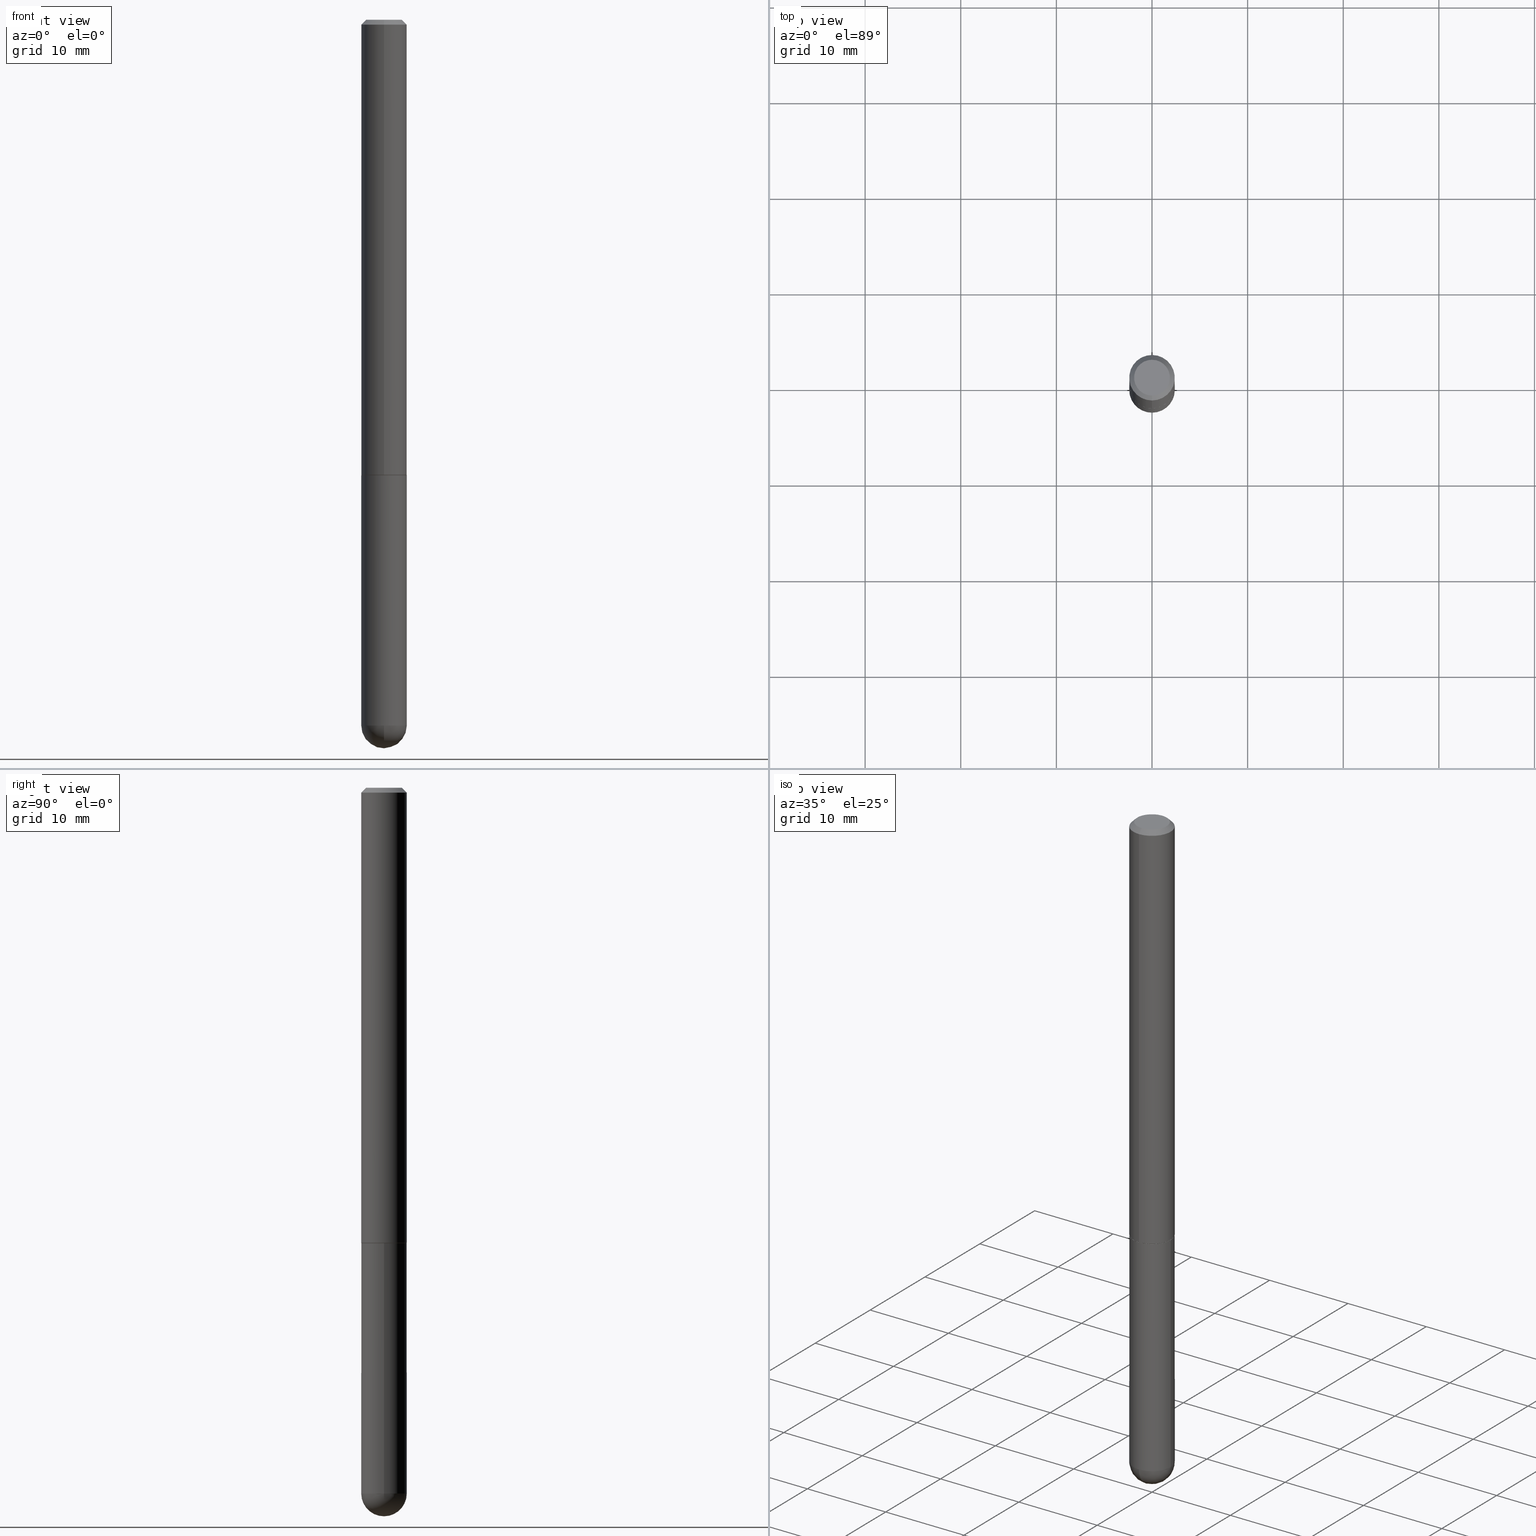
[diagram: canonical four-view strip — front | top / right | iso, engineering-drawing reading convention]
A machine part, canonical four-view strip (front | top / right | iso — engineering-drawing reading convention). The complete STEP part file that produces these views, byte-faithful:
ISO-10303-21;
HEADER;
FILE_DESCRIPTION (( 'STEP AP203' ),
    '1' );
FILE_NAME ('33322.STEP',
    '2024-02-21T18:03:22',
    ( '' ),
    ( '' ),
    'SwSTEP 2.0',
    'SolidWorks 2023',
    '' );
FILE_SCHEMA (( 'CONFIG_CONTROL_DESIGN' ));
ENDSEC;

DATA;
#1 = CALENDAR_DATE ( 2024, 21, 2 ) ;
#2 = DIRECTION ( 'NONE',  ( 6.982962677686265133E-15, 1.000000000000000000, -5.827942386483743389E-15 ) ) ;
#3 = ADVANCED_FACE ( 'NONE', ( #146 ), #356, .F. ) ;
#4 = CALENDAR_DATE ( 2024, 21, 2 ) ;
#5 = ORIENTED_EDGE ( 'NONE', *, *, #143, .T. ) ;
#6 = VECTOR ( 'NONE', #40, 39.37007874015748143 ) ;
#7 = AXIS2_PLACEMENT_3D ( 'NONE', #145, #344, #118 ) ;
#8 = CARTESIAN_POINT ( 'NONE',  ( 4.887778694849685267E-31, -6.987486427370243399E-17, -0.02000000000000007327 ) ) ;
#9 = CARTESIAN_POINT ( 'NONE',  ( 6.661338147750947131E-16, 0.09375000000000012490, -3.275384262829794452E-16 ) ) ;
#10 = DIRECTION ( 'NONE',  ( -2.443889347424833507E-29, 3.493743213685109349E-15, 1.000000000000000000 ) ) ;
#11 = CC_DESIGN_PERSON_AND_ORGANIZATION_ASSIGNMENT ( #30, #61, ( #98 ) ) ;
#12 = VERTEX_POINT ( 'NONE', #403 ) ;
#13 = EDGE_CURVE ( 'NONE', #48, #239, #96, .T. ) ;
#14 = FACE_OUTER_BOUND ( 'NONE', #51, .T. ) ;
#15 = ORIENTED_EDGE ( 'NONE', *, *, #407, .F. ) ;
#16 = CARTESIAN_POINT ( 'NONE',  ( 4.579848637074137935E-29, -6.547274782445895103E-15, -1.874000000000000110 ) ) ;
#17 = EDGE_LOOP ( 'NONE', ( #5, #187, #237, #21 ) ) ;
#18 = EDGE_CURVE ( 'NONE', #12, #66, #45, .T. ) ;
#19 = MANIFOLD_SOLID_BREP ( 'Body-Move/Copy2[2]', #398 ) ;
#20 = DIRECTION ( 'NONE',  ( -4.937700262165053702E-15, -0.7071067811866175168, 0.7071067811864775177 ) ) ;
#21 = ORIENTED_EDGE ( 'NONE', *, *, #326, .F. ) ;
#22 = APPLICATION_CONTEXT ( 'configuration controlled 3d designs of mechanical parts and assemblies' ) ;
#23 = CIRCLE ( 'NONE', #210, 0.07374999999999973244 ) ;
#24 = ORIENTED_EDGE ( 'NONE', *, *, #261, .F. ) ;
#25 = DIRECTION ( 'NONE',  ( -6.982962677686265922E-15, -1.000000000000000000, 2.945388672414300286E-15 ) ) ;
#26 = EDGE_LOOP ( 'NONE', ( #307, #191, #289, #245 ) ) ;
#27 = DIRECTION ( 'NONE',  ( -6.982962677686266711E-15, -1.000000000000000000, 3.493743213685109349E-15 ) ) ;
#28 = CARTESIAN_POINT ( 'NONE',  ( 4.579848637074137935E-29, -6.547274782445895103E-15, -1.874000000000000110 ) ) ;
#29 = AXIS2_PLACEMENT_3D ( 'NONE', #8, #262, #213 ) ;
#30 = PERSON_AND_ORGANIZATION ( #292, #164 ) ;
#31 = PERSON_AND_ORGANIZATION ( #292, #164 ) ;
#32 = DIRECTION ( 'NONE',  ( 1.000000000000000000, -6.982962677686263555E-15, 0.000000000000000000 ) ) ;
#33 = ORIENTED_EDGE ( 'NONE', *, *, #106, .T. ) ;
#34 = CALENDAR_DATE ( 2024, 21, 2 ) ;
#35 = LINE ( 'NONE', #258, #79 ) ;
#36 = COORDINATED_UNIVERSAL_TIME_OFFSET ( 5, 0, .BEHIND. ) ;
#37 = CARTESIAN_POINT ( 'NONE',  ( 0.09375000000000005551, -9.001475326704983750E-15, -2.906250000000000000 ) ) ;
#38 = CARTESIAN_POINT ( 'NONE',  ( 6.546527510330878985E-16, 0.09374999999999991673, -0.02000000000000040287 ) ) ;
#39 = AXIS2_PLACEMENT_3D ( 'NONE', #43, #329, #271 ) ;
#40 = DIRECTION ( 'NONE',  ( -2.443889347424833227E-29, 3.493743213685109349E-15, 1.000000000000000000 ) ) ;
#41 = ADVANCED_FACE ( 'NONE', ( #412 ), #69, .T. ) ;
#42 = DIRECTION ( 'NONE',  ( -2.443889347424833507E-29, 3.493743213685109349E-15, 1.000000000000000000 ) ) ;
#43 = CARTESIAN_POINT ( 'NONE',  ( 4.887778694849685267E-31, -6.987486427370243399E-17, -0.02000000000000007327 ) ) ;
#44 = EDGE_LOOP ( 'NONE', ( #209, #345, #399, #15, #231 ) ) ;
#45 = CIRCLE ( 'NONE', #392, 0.09374999999999998612 ) ;
#46 = CC_DESIGN_APPROVAL ( #297, ( #264 ) ) ;
#47 = CARTESIAN_POINT ( 'NONE',  ( -0.09375000000000005551, -7.680688760896801533E-15, -2.906250000000000000 ) ) ;
#48 = VERTEX_POINT ( 'NONE', #247 ) ;
#49 =( NAMED_UNIT ( * ) PLANE_ANGLE_UNIT ( ) SI_UNIT ( $, .RADIAN. ) );
#50 = DIRECTION ( 'NONE',  ( -2.445468806185136597E-29, 3.491481338843145583E-15, 1.000000000000000000 ) ) ;
#51 = EDGE_LOOP ( 'NONE', ( #401, #310, #126, #230 ) ) ;
#52 = VECTOR ( 'NONE', #286, 39.37007874015748854 ) ;
#53 = LINE ( 'NONE', #111, #293 ) ;
#54 = VERTEX_POINT ( 'NONE', #37 ) ;
#55 = CARTESIAN_POINT ( 'NONE',  ( 0.000000000000000000, 0.000000000000000000, 0.000000000000000000 ) ) ;
#56 = EDGE_CURVE ( 'NONE', #283, #243, #35, .T. ) ;
#57 = DIRECTION ( 'NONE',  ( 1.000000000000000000, -6.982962677686258033E-15, 0.000000000000000000 ) ) ;
#58 = DATE_AND_TIME ( #1, #183 ) ;
#59 = AXIS2_PLACEMENT_3D ( 'NONE', #279, #342, #57 ) ;
#60 = PRODUCT_DEFINITION_FORMATION_WITH_SPECIFIED_SOURCE ( 'ANY', '', #287, .NOT_KNOWN. ) ;
#61 = PERSON_AND_ORGANIZATION_ROLE ( 'classification_officer' ) ;
#62 = ORIENTED_EDGE ( 'NONE', *, *, #357, .F. ) ;
#63 = PERSON_AND_ORGANIZATION ( #292, #164 ) ;
#64 = EDGE_LOOP ( 'NONE', ( #170, #194, #62, #205 ) ) ;
#65 = APPROVAL_DATE_TIME ( #411, #297 ) ;
#66 = VERTEX_POINT ( 'NONE', #388 ) ;
#67 = AXIS2_PLACEMENT_3D ( 'NONE', #278, #184, #91 ) ;
#68 = PERSON_AND_ORGANIZATION ( #292, #164 ) ;
#69 = SPHERICAL_SURFACE ( 'NONE', #168, 0.09375000000000029143 ) ;
#70 = ADVANCED_BREP_SHAPE_REPRESENTATION ( '33322', ( #296, #19, #235 ), #362 ) ;
#71 = EDGE_CURVE ( 'NONE', #144, #66, #318, .T. ) ;
#72 = DIRECTION ( 'NONE',  ( 1.000000000000000000, -6.982962677686258033E-15, 0.000000000000000000 ) ) ;
#73 = DIRECTION ( 'NONE',  ( -2.445468806185136597E-29, 3.491481338843145583E-15, 1.000000000000000000 ) ) ;
#74 = CLOSED_SHELL ( 'NONE', ( #354, #41, #100, #376, #380 ) ) ;
#75 = DIRECTION ( 'NONE',  ( 2.443889347424833227E-29, -3.493743213685109349E-15, -1.000000000000000000 ) ) ;
#76 = DIRECTION ( 'NONE',  ( 1.000000000000000000, -6.982962677686258033E-15, 0.000000000000000000 ) ) ;
#77 = VERTEX_POINT ( 'NONE', #254 ) ;
#78 = ORIENTED_EDGE ( 'NONE', *, *, #326, .T. ) ;
#79 = VECTOR ( 'NONE', #160, 39.37007874015748143 ) ;
#80 = DIRECTION ( 'NONE',  ( -2.445468806185136597E-29, 3.491481338843145583E-15, 1.000000000000000000 ) ) ;
#81 = ORIENTED_EDGE ( 'NONE', *, *, #199, .F. ) ;
#82 = DIRECTION ( 'NONE',  ( 1.000000000000000000, -6.982962677686265922E-15, 4.876176775795935793E-29 ) ) ;
#83 = DIRECTION ( 'NONE',  ( -2.443889347424833507E-29, 3.493743213685109349E-15, 1.000000000000000000 ) ) ;
#84 = AXIS2_PLACEMENT_3D ( 'NONE', #298, #166, #162 ) ;
#85 = CARTESIAN_POINT ( 'NONE',  ( 6.590283874175385714E-16, 0.09274999999999343492, -1.875000000000000444 ) ) ;
#86 = ORIENTED_EDGE ( 'NONE', *, *, #18, .T. ) ;
#87 = CYLINDRICAL_SURFACE ( 'NONE', #353, 0.09375000000000002776 ) ;
#88 = PERSON_AND_ORGANIZATION_ROLE ( 'design_supplier' ) ;
#89 = EDGE_CURVE ( 'NONE', #66, #12, #130, .T. ) ;
#90 = SHAPE_DEFINITION_REPRESENTATION ( #188, #70 ) ;
#91 = DIRECTION ( 'NONE',  ( -6.982962677686265922E-15, -1.000000000000000000, 3.493743213685109349E-15 ) ) ;
#92 = VERTEX_POINT ( 'NONE', #99 ) ;
#93 = EDGE_CURVE ( 'NONE', #48, #283, #23, .T. ) ;
#94 = ADVANCED_FACE ( 'NONE', ( #385 ), #153, .F. ) ;
#95 = DATE_TIME_ROLE ( 'classification_date' ) ;
#96 = LINE ( 'NONE', #125, #52 ) ;
#97 = AXIS2_PLACEMENT_3D ( 'NONE', #136, #132, #360 ) ;
#98 = SECURITY_CLASSIFICATION ( '', '', #127 ) ;
#99 = CARTESIAN_POINT ( 'NONE',  ( 6.625811010963399630E-16, 0.09274999999999343492, -1.875000000000000444 ) ) ;
#100 = ADVANCED_FACE ( 'NONE', ( #268 ), #200, .T. ) ;
#101 = DIRECTION ( 'NONE',  ( 6.982962677686266711E-15, 1.000000000000000000, -3.505871591869138487E-15 ) ) ;
#102 = CC_DESIGN_PERSON_AND_ORGANIZATION_ASSIGNMENT ( #63, #408, ( #60 ) ) ;
#103 = FACE_OUTER_BOUND ( 'NONE', #371, .T. ) ;
#104 = CIRCLE ( 'NONE', #7, 0.09375000000000005551 ) ;
#105 = CARTESIAN_POINT ( 'NONE',  ( 7.107143717975553234E-29, -1.014711764101289221E-14, -2.906250000000000000 ) ) ;
#106 = EDGE_CURVE ( 'NONE', #112, #54, #301, .T. ) ;
#107 = VERTEX_POINT ( 'NONE', #232 ) ;
#108 = LINE ( 'NONE', #9, #352 ) ;
#109 = ORIENTED_EDGE ( 'NONE', *, *, #56, .F. ) ;
#110 = DIRECTION ( 'NONE',  ( -6.982962677686265922E-15, -1.000000000000000000, 2.945388672414300286E-15 ) ) ;
#111 = CARTESIAN_POINT ( 'NONE',  ( -6.476697883553552429E-16, -0.09275000000000654943, -1.874999999999999778 ) ) ;
#112 = VERTEX_POINT ( 'NONE', #236 ) ;
#113 =( CONVERSION_BASED_UNIT ( 'INCH', #115 ) LENGTH_UNIT ( ) NAMED_UNIT ( #249 ) );
#114 = CC_DESIGN_DATE_AND_TIME_ASSIGNMENT ( #387, #95, ( #98 ) ) ;
#115 = LENGTH_MEASURE_WITH_UNIT ( LENGTH_MEASURE( 0.02539999999999999897 ), #207 );
#116 = DIRECTION ( 'NONE',  ( 1.000000000000000000, -6.982962677686263555E-15, 0.000000000000000000 ) ) ;
#117 = AXIS2_PLACEMENT_3D ( 'NONE', #105, #73, #72 ) ;
#118 = DIRECTION ( 'NONE',  ( 1.000000000000000000, -6.982962677686258033E-15, 0.000000000000000000 ) ) ;
#119 = CC_DESIGN_PERSON_AND_ORGANIZATION_ASSIGNMENT ( #68, #255, ( #287 ) ) ;
#120 = CARTESIAN_POINT ( 'NONE',  ( 0.000000000000000000, 0.000000000000000000, 0.000000000000000000 ) ) ;
#121 = DATE_AND_TIME ( #282, #248 ) ;
#122 = APPROVAL_ROLE ( '' ) ;
#123 = VECTOR ( 'NONE', #389, 39.37007874015748143 ) ;
#124 = CIRCLE ( 'NONE', #169, 0.09375000000000029143 ) ;
#125 = CARTESIAN_POINT ( 'NONE',  ( -6.431716872910804923E-16, -0.09375000000000005551, -0.01999999999999974368 ) ) ;
#126 = ORIENTED_EDGE ( 'NONE', *, *, #56, .T. ) ;
#127 = SECURITY_CLASSIFICATION_LEVEL ( 'unclassified' ) ;
#128 = CARTESIAN_POINT ( 'NONE',  ( 4.585254011597131119E-29, -6.546527510330898707E-15, -1.875000000000000000 ) ) ;
#129 = ORIENTED_EDGE ( 'NONE', *, *, #143, .F. ) ;
#130 = CIRCLE ( 'NONE', #140, 0.09374999999999998612 ) ;
#131 = CARTESIAN_POINT ( 'NONE',  ( -6.546527510330883916E-16, -0.09375000000000012490, 3.275384262829794452E-16 ) ) ;
#132 = DIRECTION ( 'NONE',  ( -1.000000000000000000, 6.982962677686265133E-15, -4.883557194083112901E-29 ) ) ;
#133 = DIRECTION ( 'NONE',  ( -6.982962677686266711E-15, -1.000000000000000000, 3.493743213685109349E-15 ) ) ;
#134 = EDGE_LOOP ( 'NONE', ( #129, #138 ) ) ;
#135 = VECTOR ( 'NONE', #281, 39.37007874015748143 ) ;
#136 = CARTESIAN_POINT ( 'NONE',  ( 6.776023940061668108E-29, -1.062130000915294250E-14, -2.906250000000000000 ) ) ;
#137 = DIRECTION ( 'NONE',  ( -6.982962677686265133E-15, -1.000000000000000000, 2.913971193241872483E-15 ) ) ;
#138 = ORIENTED_EDGE ( 'NONE', *, *, #202, .F. ) ;
#139 = ORIENTED_EDGE ( 'NONE', *, *, #212, .T. ) ;
#140 = AXIS2_PLACEMENT_3D ( 'NONE', #215, #351, #32 ) ;
#141 = CC_DESIGN_APPROVAL ( #270, ( #98 ) ) ;
#142 = CARTESIAN_POINT ( 'NONE',  ( 6.776023940061668108E-29, -1.062130000915294250E-14, -2.906250000000000000 ) ) ;
#143 = EDGE_CURVE ( 'NONE', #107, #92, #197, .T. ) ;
#144 = VERTEX_POINT ( 'NONE', #47 ) ;
#145 = CARTESIAN_POINT ( 'NONE',  ( 7.107143717975553234E-29, -1.014711764101289221E-14, -2.906250000000000000 ) ) ;
#146 = FACE_OUTER_BOUND ( 'NONE', #134, .T. ) ;
#147 = EDGE_CURVE ( 'NONE', #179, #243, #108, .T. ) ;
#148 = DIRECTION ( 'NONE',  ( -2.443889347424833507E-29, 3.493743213685109349E-15, 1.000000000000000000 ) ) ;
#149 = AXIS2_PLACEMENT_3D ( 'NONE', #299, #397, #110 ) ;
#150 = CARTESIAN_POINT ( 'NONE',  ( 0.09375000000000002776, -6.546527510330876027E-16, 4.571415727308691207E-30 ) ) ;
#151 = APPROVAL_STATUS ( 'not_yet_approved' ) ;
#152 = CALENDAR_DATE ( 2024, 21, 2 ) ;
#153 = PLANE ( 'NONE',  #252 ) ;
#154 = COORDINATED_UNIVERSAL_TIME_OFFSET ( 5, 0, .BEHIND. ) ;
#155 = ORIENTED_EDGE ( 'NONE', *, *, #175, .F. ) ;
#156 = APPLICATION_CONTEXT ( 'configuration controlled 3d designs of mechanical parts and assemblies' ) ;
#157 = PERSON_AND_ORGANIZATION ( #292, #164 ) ;
#158 = DIRECTION ( 'NONE',  ( -1.000000000000000000, 6.982962677686265133E-15, -4.883557194083112901E-29 ) ) ;
#159 = COORDINATED_UNIVERSAL_TIME_OFFSET ( 5, 0, .BEHIND. ) ;
#160 = DIRECTION ( 'NONE',  ( 4.937700262164540154E-15, 0.7071067811865440200, -0.7071067811865511255 ) ) ;
#161 = ADVANCED_FACE ( 'NONE', ( #196 ), #366, .T. ) ;
#162 = DIRECTION ( 'NONE',  ( -6.982962677686265922E-15, -1.000000000000000000, 2.945388672414300286E-15 ) ) ;
#163 = AXIS2_PLACEMENT_3D ( 'NONE', #390, #42, #265 ) ;
#164 = ORGANIZATION ( 'UNSPECIFIED', 'UNSPECIFIED', '' ) ;
#165 = DIRECTION ( 'NONE',  ( -2.443889347424833507E-29, 3.493743213685109349E-15, 1.000000000000000000 ) ) ;
#166 = DIRECTION ( 'NONE',  ( -2.443889347424833507E-29, 3.493743213685109349E-15, 1.000000000000000000 ) ) ;
#167 = FACE_OUTER_BOUND ( 'NONE', #336, .T. ) ;
#168 = AXIS2_PLACEMENT_3D ( 'NONE', #324, #158, #2 ) ;
#169 = AXIS2_PLACEMENT_3D ( 'NONE', #142, #346, #217 ) ;
#170 = ORIENTED_EDGE ( 'NONE', *, *, #186, .F. ) ;
#171 = DIRECTION ( 'NONE',  ( -6.982962677686265922E-15, -1.000000000000000000, 2.945388672414300286E-15 ) ) ;
#172 = ORIENTED_EDGE ( 'NONE', *, *, #407, .T. ) ;
#173 = FACE_OUTER_BOUND ( 'NONE', #17, .T. ) ;
#174 = VERTEX_POINT ( 'NONE', #394 ) ;
#175 = EDGE_CURVE ( 'NONE', #174, #239, #238, .T. ) ;
#176 = CIRCLE ( 'NONE', #410, 0.09375000000000026368 ) ;
#177 = APPROVAL_PERSON_ORGANIZATION ( #157, #229, #222 ) ;
#178 = DIRECTION ( 'NONE',  ( -1.000000000000000000, 6.982962677686265922E-15, -4.876176775795935793E-29 ) ) ;
#179 = VERTEX_POINT ( 'NONE', #233 ) ;
#180 = CARTESIAN_POINT ( 'NONE',  ( 4.582292526421562791E-29, -6.550768525659580818E-15, -1.875000000000000000 ) ) ;
#181 = FACE_OUTER_BOUND ( 'NONE', #396, .T. ) ;
#182 = CIRCLE ( 'NONE', #59, 0.09375000000000005551 ) ;
#183 = LOCAL_TIME ( 13, 3, 22.00000000000000000, #154 ) ;
#184 = DIRECTION ( 'NONE',  ( -2.443889347424833227E-29, 3.493743213685109349E-15, 1.000000000000000000 ) ) ;
#185 = EDGE_CURVE ( 'NONE', #283, #48, #405, .T. ) ;
#186 = EDGE_CURVE ( 'NONE', #276, #112, #308, .T. ) ;
#187 = ORIENTED_EDGE ( 'NONE', *, *, #261, .T. ) ;
#188 = PRODUCT_DEFINITION_SHAPE ( 'NONE', 'NONE',  #264 ) ;
#189 = COORDINATED_UNIVERSAL_TIME_OFFSET ( 5, 0, .BEHIND. ) ;
#190 = AXIS2_PLACEMENT_3D ( 'NONE', #244, #50, #404 ) ;
#191 = ORIENTED_EDGE ( 'NONE', *, *, #199, .T. ) ;
#192 = EDGE_CURVE ( 'NONE', #77, #144, #368, .T. ) ;
#193 = APPROVAL_STATUS ( 'not_yet_approved' ) ;
#194 = ORIENTED_EDGE ( 'NONE', *, *, #332, .T. ) ;
#195 = DIRECTION ( 'NONE',  ( 2.443889347424833507E-29, -3.493743213685109349E-15, -1.000000000000000000 ) ) ;
#196 = FACE_OUTER_BOUND ( 'NONE', #26, .T. ) ;
#197 = CIRCLE ( 'NONE', #219, 0.09274999999999998523 ) ;
#198 = CARTESIAN_POINT ( 'NONE',  ( 4.582292526421562791E-29, -6.550768525659580818E-15, -1.875000000000000000 ) ) ;
#199 = EDGE_CURVE ( 'NONE', #179, #174, #176, .T. ) ;
#200 = SPHERICAL_SURFACE ( 'NONE', #97, 0.09375000000000029143 ) ;
#201 = EDGE_LOOP ( 'NONE', ( #374, #256, #367, #333 ) ) ;
#202 = EDGE_CURVE ( 'NONE', #92, #107, #348, .T. ) ;
#203 = CARTESIAN_POINT ( 'NONE',  ( 6.776023940061668108E-29, -1.062130000915294250E-14, -2.906250000000000000 ) ) ;
#204 = CONICAL_SURFACE ( 'NONE', #321, 0.09374999999999998612, 0.7853981633974467247 ) ;
#205 = ORIENTED_EDGE ( 'NONE', *, *, #106, .F. ) ;
#206 = ORIENTED_EDGE ( 'NONE', *, *, #212, .F. ) ;
#207 =( LENGTH_UNIT ( ) NAMED_UNIT ( * ) SI_UNIT ( $, .METRE. ) );
#208 = CYLINDRICAL_SURFACE ( 'NONE', #241, 0.09375000000000012490 ) ;
#209 = ORIENTED_EDGE ( 'NONE', *, *, #192, .T. ) ;
#210 = AXIS2_PLACEMENT_3D ( 'NONE', #358, #313, #377 ) ;
#211 = CONICAL_SURFACE ( 'NONE', #303, 0.09274999999999998523, 0.7853981633975507526 ) ;
#212 = EDGE_CURVE ( 'NONE', #239, #243, #226, .T. ) ;
#213 = DIRECTION ( 'NONE',  ( -6.982962677686266711E-15, -1.000000000000000000, 3.505871591869138487E-15 ) ) ;
#214 = ADVANCED_FACE ( 'NONE', ( #103 ), #284, .T. ) ;
#215 = CARTESIAN_POINT ( 'NONE',  ( 4.585254011597131119E-29, -6.546527510330898707E-15, -1.875000000000000000 ) ) ;
#216 = ADVANCED_FACE ( 'NONE', ( #167 ), #266, .T. ) ;
#217 = DIRECTION ( 'NONE',  ( 6.982962677686265922E-15, 1.000000000000000000, 0.000000000000000000 ) ) ;
#218 = APPLICATION_PROTOCOL_DEFINITION ( 'international standard', 'config_control_design', 1994, #156 ) ;
#219 = AXIS2_PLACEMENT_3D ( 'NONE', #198, #395, #171 ) ;
#220 = MECHANICAL_CONTEXT ( 'NONE', #22, 'mechanical' ) ;
#221 = UNCERTAINTY_MEASURE_WITH_UNIT (LENGTH_MEASURE( 1.000000000000000082E-05 ), #113, 'distance_accuracy_value', 'NONE');
#222 = APPROVAL_ROLE ( '' ) ;
#223 = DIRECTION ( 'NONE',  ( -2.445468806185136597E-29, 3.491481338843145583E-15, 1.000000000000000000 ) ) ;
#224 = ORIENTED_EDGE ( 'NONE', *, *, #13, .T. ) ;
#225 = ADVANCED_FACE ( 'NONE', ( #14 ), #204, .T. ) ;
#226 = CIRCLE ( 'NONE', #234, 0.09374999999999998612 ) ;
#227 = COORDINATED_UNIVERSAL_TIME_OFFSET ( 5, 0, .BEHIND. ) ;
#228 = APPROVAL_PERSON_ORGANIZATION ( #347, #297, #349 ) ;
#229 = APPROVAL ( #193, 'UNSPECIFIED' ) ;
#230 = ORIENTED_EDGE ( 'NONE', *, *, #257, .T. ) ;
#231 = ORIENTED_EDGE ( 'NONE', *, *, #357, .T. ) ;
#232 = CARTESIAN_POINT ( 'NONE',  ( -6.476697883553552429E-16, -0.09275000000000654943, -1.874999999999999778 ) ) ;
#233 = CARTESIAN_POINT ( 'NONE',  ( 6.661338147751183789E-16, 0.09374999999999372724, -1.874000000000000332 ) ) ;
#234 = AXIS2_PLACEMENT_3D ( 'NONE', #295, #330, #391 ) ;
#235 = AXIS2_PLACEMENT_3D ( 'NONE', #290, #355, #384 ) ;
#236 = CARTESIAN_POINT ( 'NONE',  ( -6.661338147750256878E-16, -0.09375000000001056100, -2.906249999999999556 ) ) ;
#237 = ORIENTED_EDGE ( 'NONE', *, *, #393, .F. ) ;
#238 = LINE ( 'NONE', #131, #6 ) ;
#239 = VERTEX_POINT ( 'NONE', #325 ) ;
#240 = CARTESIAN_POINT ( 'NONE',  ( 4.887778694849685267E-31, -6.987486427370243399E-17, -0.02000000000000007327 ) ) ;
#241 = AXIS2_PLACEMENT_3D ( 'NONE', #55, #83, #27 ) ;
#242 = CC_DESIGN_APPROVAL ( #229, ( #60 ) ) ;
#243 = VERTEX_POINT ( 'NONE', #38 ) ;
#244 = CARTESIAN_POINT ( 'NONE',  ( 0.000000000000000000, 0.000000000000000000, 0.000000000000000000 ) ) ;
#245 = ORIENTED_EDGE ( 'NONE', *, *, #257, .F. ) ;
#246 = ORIENTED_EDGE ( 'NONE', *, *, #89, .F. ) ;
#247 = CARTESIAN_POINT ( 'NONE',  ( -5.745667073133644707E-16, -0.07374999999999973244, 5.139411246848953487E-16 ) ) ;
#248 = LOCAL_TIME ( 13, 3, 22.00000000000000000, #227 ) ;
#249 = DIMENSIONAL_EXPONENTS ( 1.000000000000000000, 0.000000000000000000, 0.000000000000000000, 0.000000000000000000, 0.000000000000000000, 0.000000000000000000, 0.000000000000000000 ) ;
#250 = LINE ( 'NONE', #85, #259 ) ;
#251 = CC_DESIGN_DATE_AND_TIME_ASSIGNMENT ( #58, #316, ( #264 ) ) ;
#252 = AXIS2_PLACEMENT_3D ( 'NONE', #409, #75, #363 ) ;
#253 = PERSON_AND_ORGANIZATION_ROLE ( 'creator' ) ;
#254 = CARTESIAN_POINT ( 'NONE',  ( 6.546527510331581072E-16, 0.09374999999998979983, -2.906250000000000888 ) ) ;
#255 = PERSON_AND_ORGANIZATION_ROLE ( 'design_owner' ) ;
#256 = ORIENTED_EDGE ( 'NONE', *, *, #186, .T. ) ;
#257 = EDGE_CURVE ( 'NONE', #243, #239, #375, .T. ) ;
#258 = CARTESIAN_POINT ( 'NONE',  ( 6.546527510330878985E-16, 0.09374999999999991673, -0.02000000000000040287 ) ) ;
#259 = VECTOR ( 'NONE', #312, 39.37007874015748143 ) ;
#260 = CARTESIAN_POINT ( 'NONE',  ( -0.09375000000000002776, 6.661338147750941215E-16, -4.611501647113975397E-30 ) ) ;
#261 = EDGE_CURVE ( 'NONE', #92, #179, #250, .T. ) ;
#262 = DIRECTION ( 'NONE',  ( -2.443889347424833507E-29, 3.493743213685109349E-15, 1.000000000000000000 ) ) ;
#263 = CARTESIAN_POINT ( 'NONE',  ( 7.107143717975553234E-29, -1.014711764101289221E-14, -2.906250000000000000 ) ) ;
#264 = PRODUCT_DEFINITION ( 'UNKNOWN', '', #60, #339 ) ;
#265 = DIRECTION ( 'NONE',  ( -6.982962677686265922E-15, -1.000000000000000000, 3.493743213685109349E-15 ) ) ;
#266 = CONICAL_SURFACE ( 'NONE', #149, 0.09274999999999998523, 0.7853981633975507526 ) ;
#267 = LOCAL_TIME ( 13, 3, 22.00000000000000000, #159 ) ;
#268 = FACE_OUTER_BOUND ( 'NONE', #64, .T. ) ;
#269 = ORIENTED_EDGE ( 'NONE', *, *, #311, .T. ) ;
#270 = APPROVAL ( #151, 'UNSPECIFIED' ) ;
#271 = DIRECTION ( 'NONE',  ( 6.982962677686266711E-15, 1.000000000000000000, -3.505871591869138487E-15 ) ) ;
#272 = DIRECTION ( 'NONE',  ( 2.438088387897960049E-29, -3.491481338843145188E-15, -1.000000000000000000 ) ) ;
#273 = AXIS2_PLACEMENT_3D ( 'NONE', #28, #400, #372 ) ;
#274 = ORIENTED_EDGE ( 'NONE', *, *, #202, .T. ) ;
#275 = CYLINDRICAL_SURFACE ( 'NONE', #190, 0.09375000000000002776 ) ;
#276 = VERTEX_POINT ( 'NONE', #277 ) ;
#277 = CARTESIAN_POINT ( 'NONE',  ( 7.009295232622052523E-29, -1.094288585279848383E-14, -3.000000000000000444 ) ) ;
#278 = CARTESIAN_POINT ( 'NONE',  ( 4.582292526421562791E-29, -6.550768525659580818E-15, -1.875000000000000000 ) ) ;
#279 = CARTESIAN_POINT ( 'NONE',  ( 7.107143717975553234E-29, -1.014711764101289221E-14, -2.906250000000000000 ) ) ;
#280 = LOCAL_TIME ( 13, 3, 22.00000000000000000, #189 ) ;
#281 = DIRECTION ( 'NONE',  ( -2.445468806185136877E-29, 3.491481338843145188E-15, 1.000000000000000000 ) ) ;
#282 = CALENDAR_DATE ( 2024, 21, 2 ) ;
#283 = VERTEX_POINT ( 'NONE', #314 ) ;
#284 = CONICAL_SURFACE ( 'NONE', #39, 0.09374999999999998612, 0.7853981633974467247 ) ;
#285 = APPROVAL_STATUS ( 'not_yet_approved' ) ;
#286 = DIRECTION ( 'NONE',  ( -4.851104656540955597E-15, -0.7071067811865487940, -0.7071067811865461294 ) ) ;
#287 = PRODUCT ( '33322', '33322', '', ( #220 ) ) ;
#288 = APPROVAL_DATE_TIME ( #350, #229 ) ;
#289 = ORIENTED_EDGE ( 'NONE', *, *, #175, .T. ) ;
#290 = CARTESIAN_POINT ( 'NONE',  ( 0.000000000000000000, 0.000000000000000000, 0.000000000000000000 ) ) ;
#291 = ORIENTED_EDGE ( 'NONE', *, *, #185, .T. ) ;
#292 = PERSON ( 'UNSPECIFIED', 'UNSPECIFIED', 'UNSPECIFIED', ('UNSPECIFIED'), ('UNSPECIFIED'), ('UNSPECIFIED') ) ;
#293 = VECTOR ( 'NONE', #20, 39.37007874015748143 ) ;
#294 = CC_DESIGN_SECURITY_CLASSIFICATION ( #98, ( #60 ) ) ;
#295 = CARTESIAN_POINT ( 'NONE',  ( 4.887778694849685267E-31, -6.987486427370243399E-17, -0.02000000000000007327 ) ) ;
#296 = MANIFOLD_SOLID_BREP ( 'Body-Move/Copy2[1]', #74 ) ;
#297 = APPROVAL ( #285, 'UNSPECIFIED' ) ;
#298 = CARTESIAN_POINT ( 'NONE',  ( 4.582292526421562791E-29, -6.550768525659580818E-15, -1.875000000000000000 ) ) ;
#299 = CARTESIAN_POINT ( 'NONE',  ( 4.582292526421562791E-29, -6.550768525659580818E-15, -1.875000000000000000 ) ) ;
#300 = ORIENTED_EDGE ( 'NONE', *, *, #393, .T. ) ;
#301 = CIRCLE ( 'NONE', #117, 0.09375000000000005551 ) ;
#302 = DIRECTION ( 'NONE',  ( -2.443889347424833227E-29, 3.493743213685109349E-15, 1.000000000000000000 ) ) ;
#303 = AXIS2_PLACEMENT_3D ( 'NONE', #180, #148, #25 ) ;
#304 = ORIENTED_EDGE ( 'NONE', *, *, #71, .F. ) ;
#305 = DIRECTION ( 'NONE',  ( -2.445468806185136597E-29, 3.491481338843145583E-15, 1.000000000000000000 ) ) ;
#306 = CARTESIAN_POINT ( 'NONE',  ( 6.546527510331332580E-16, 0.09374999999999344968, -1.875000000000000444 ) ) ;
#307 = ORIENTED_EDGE ( 'NONE', *, *, #147, .F. ) ;
#308 = CIRCLE ( 'NONE', #320, 0.09375000000000029143 ) ;
#309 = ADVANCED_FACE ( 'NONE', ( #369 ), #208, .T. ) ;
#310 = ORIENTED_EDGE ( 'NONE', *, *, #185, .F. ) ;
#311 = EDGE_CURVE ( 'NONE', #144, #112, #182, .T. ) ;
#312 = DIRECTION ( 'NONE',  ( 5.024295867788576727E-15, 0.7071067811866224018, 0.7071067811864726327 ) ) ;
#313 = DIRECTION ( 'NONE',  ( -2.443889347424833507E-29, 3.493743213685109349E-15, 1.000000000000000000 ) ) ;
#314 = CARTESIAN_POINT ( 'NONE',  ( 5.848231242562241073E-16, 0.07374999999999973244, -1.385999333656328335E-18 ) ) ;
#315 = PLANE ( 'NONE',  #370 ) ;
#316 = DATE_TIME_ROLE ( 'creation_date' ) ;
#317 = PERSON_AND_ORGANIZATION ( #292, #164 ) ;
#318 = LINE ( 'NONE', #260, #123 ) ;
#319 = EDGE_LOOP ( 'NONE', ( #300, #338, #206, #155 ) ) ;
#320 = AXIS2_PLACEMENT_3D ( 'NONE', #203, #364, #334 ) ;
#321 = AXIS2_PLACEMENT_3D ( 'NONE', #240, #195, #101 ) ;
#322 = ORIENTED_EDGE ( 'NONE', *, *, #93, .F. ) ;
#323 = PERSON_AND_ORGANIZATION ( #292, #164 ) ;
#324 = CARTESIAN_POINT ( 'NONE',  ( 6.776023940061668108E-29, -1.062130000915294250E-14, -2.906250000000000000 ) ) ;
#325 = CARTESIAN_POINT ( 'NONE',  ( -6.431716872910804923E-16, -0.09375000000000005551, -0.01999999999999974368 ) ) ;
#326 = EDGE_CURVE ( 'NONE', #107, #174, #53, .T. ) ;
#327 = LOCAL_TIME ( 13, 3, 22.00000000000000000, #36 ) ;
#328 = CARTESIAN_POINT ( 'NONE',  ( 0.000000000000000000, 0.000000000000000000, 0.000000000000000000 ) ) ;
#329 = DIRECTION ( 'NONE',  ( 2.443889347424833507E-29, -3.493743213685109349E-15, -1.000000000000000000 ) ) ;
#330 = DIRECTION ( 'NONE',  ( -2.443889347424833507E-29, 3.493743213685109349E-15, 1.000000000000000000 ) ) ;
#331 = ADVANCED_FACE ( 'NONE', ( #173 ), #211, .T. ) ;
#332 = EDGE_CURVE ( 'NONE', #276, #77, #124, .T. ) ;
#333 = ORIENTED_EDGE ( 'NONE', *, *, #192, .F. ) ;
#334 = DIRECTION ( 'NONE',  ( -7.105427357601001070E-15, -1.000000000000000000, 0.000000000000000000 ) ) ;
#335 = APPROVAL_PERSON_ORGANIZATION ( #317, #270, #122 ) ;
#336 = EDGE_LOOP ( 'NONE', ( #24, #274, #78, #81 ) ) ;
#337 = FACE_OUTER_BOUND ( 'NONE', #44, .T. ) ;
#338 = ORIENTED_EDGE ( 'NONE', *, *, #147, .T. ) ;
#339 = DESIGN_CONTEXT ( 'detailed design', #156, 'design' ) ;
#340 = ORIENTED_EDGE ( 'NONE', *, *, #89, .T. ) ;
#341 = CC_DESIGN_PERSON_AND_ORGANIZATION_ASSIGNMENT ( #323, #253, ( #264 ) ) ;
#342 = DIRECTION ( 'NONE',  ( -2.445468806185136597E-29, 3.491481338843145583E-15, 1.000000000000000000 ) ) ;
#343 = EDGE_LOOP ( 'NONE', ( #86, #340 ) ) ;
#344 = DIRECTION ( 'NONE',  ( -2.445468806185136597E-29, 3.491481338843145583E-15, 1.000000000000000000 ) ) ;
#345 = ORIENTED_EDGE ( 'NONE', *, *, #71, .T. ) ;
#346 = DIRECTION ( 'NONE',  ( 1.000000000000000000, -6.982962677686265922E-15, 4.883557194083112340E-29 ) ) ;
#347 = PERSON_AND_ORGANIZATION ( #292, #164 ) ;
#348 = CIRCLE ( 'NONE', #84, 0.09274999999999998523 ) ;
#349 = APPROVAL_ROLE ( '' ) ;
#350 = DATE_AND_TIME ( #152, #280 ) ;
#351 = DIRECTION ( 'NONE',  ( -2.445468806185136597E-29, 3.491481338843145583E-15, 1.000000000000000000 ) ) ;
#352 = VECTOR ( 'NONE', #302, 39.37007874015748143 ) ;
#353 = AXIS2_PLACEMENT_3D ( 'NONE', #120, #80, #82 ) ;
#354 = ADVANCED_FACE ( 'NONE', ( #337 ), #275, .T. ) ;
#355 = DIRECTION ( 'NONE',  ( 0.000000000000000000, 0.000000000000000000, 1.000000000000000000 ) ) ;
#356 = PLANE ( 'NONE',  #67 ) ;
#357 = EDGE_CURVE ( 'NONE', #54, #77, #104, .T. ) ;
#358 = CARTESIAN_POINT ( 'NONE',  ( -6.263140054069467056E-45, 8.953679954177059313E-31, 2.562775626756195084E-16 ) ) ;
#359 = PRODUCT_RELATED_PRODUCT_CATEGORY ( 'detail', '', ( #287 ) ) ;
#360 = DIRECTION ( 'NONE',  ( 6.982962677686265133E-15, 1.000000000000000000, -5.827942386483743389E-15 ) ) ;
#361 = AXIS2_PLACEMENT_3D ( 'NONE', #263, #305, #76 ) ;
#362 =( GEOMETRIC_REPRESENTATION_CONTEXT ( 3 ) GLOBAL_UNCERTAINTY_ASSIGNED_CONTEXT ( ( #221 ) ) GLOBAL_UNIT_ASSIGNED_CONTEXT ( ( #113, #49, #373 ) ) REPRESENTATION_CONTEXT ( 'NONE', 'WORKASPACE' ) );
#363 = DIRECTION ( 'NONE',  ( 6.982962677686265922E-15, 1.000000000000000000, -3.493743213685109349E-15 ) ) ;
#364 = DIRECTION ( 'NONE',  ( -1.000000000000000000, 7.105427357601001070E-15, -4.926315508542082329E-29 ) ) ;
#365 = EDGE_LOOP ( 'NONE', ( #291, #386 ) ) ;
#366 = CYLINDRICAL_SURFACE ( 'NONE', #383, 0.09375000000000012490 ) ;
#367 = ORIENTED_EDGE ( 'NONE', *, *, #311, .F. ) ;
#368 = CIRCLE ( 'NONE', #361, 0.09375000000000005551 ) ;
#369 = FACE_OUTER_BOUND ( 'NONE', #319, .T. ) ;
#370 = AXIS2_PLACEMENT_3D ( 'NONE', #306, #272, #178 ) ;
#371 = EDGE_LOOP ( 'NONE', ( #322, #224, #139, #109 ) ) ;
#372 = DIRECTION ( 'NONE',  ( -6.982962677686265133E-15, -1.000000000000000000, 2.913971193241872483E-15 ) ) ;
#373 =( NAMED_UNIT ( * ) SI_UNIT ( $, .STERADIAN. ) SOLID_ANGLE_UNIT ( ) );
#374 = ORIENTED_EDGE ( 'NONE', *, *, #332, .F. ) ;
#375 = CIRCLE ( 'NONE', #29, 0.09374999999999998612 ) ;
#376 = ADVANCED_FACE ( 'NONE', ( #379 ), #315, .F. ) ;
#377 = DIRECTION ( 'NONE',  ( -6.982962677686265922E-15, -1.000000000000000000, 3.493743213685109349E-15 ) ) ;
#378 = CC_DESIGN_PERSON_AND_ORGANIZATION_ASSIGNMENT ( #31, #88, ( #60 ) ) ;
#379 = FACE_OUTER_BOUND ( 'NONE', #343, .T. ) ;
#380 = ADVANCED_FACE ( 'NONE', ( #181 ), #87, .T. ) ;
#381 = APPLICATION_PROTOCOL_DEFINITION ( 'international standard', 'config_control_design', 1994, #22 ) ;
#382 = APPROVAL_DATE_TIME ( #121, #270 ) ;
#383 = AXIS2_PLACEMENT_3D ( 'NONE', #328, #10, #133 ) ;
#384 = DIRECTION ( 'NONE',  ( 1.000000000000000000, 0.000000000000000000, 0.000000000000000000 ) ) ;
#385 = FACE_OUTER_BOUND ( 'NONE', #365, .T. ) ;
#386 = ORIENTED_EDGE ( 'NONE', *, *, #93, .T. ) ;
#387 = DATE_AND_TIME ( #4, #267 ) ;
#388 = CARTESIAN_POINT ( 'NONE',  ( -0.09374999999999998612, -7.680688760896801533E-15, -1.875000000000000000 ) ) ;
#389 = DIRECTION ( 'NONE',  ( -2.445468806185136877E-29, 3.491481338843145188E-15, 1.000000000000000000 ) ) ;
#390 = CARTESIAN_POINT ( 'NONE',  ( -6.263140054069467056E-45, 8.953679954177059313E-31, 2.562775626756195084E-16 ) ) ;
#391 = DIRECTION ( 'NONE',  ( -6.982962677686266711E-15, -1.000000000000000000, 3.505871591869138487E-15 ) ) ;
#392 = AXIS2_PLACEMENT_3D ( 'NONE', #128, #223, #116 ) ;
#393 = EDGE_CURVE ( 'NONE', #174, #179, #406, .T. ) ;
#394 = CARTESIAN_POINT ( 'NONE',  ( -6.546527510330433279E-16, -0.09375000000000680012, -1.873999999999999666 ) ) ;
#395 = DIRECTION ( 'NONE',  ( -2.443889347424833507E-29, 3.493743213685109349E-15, 1.000000000000000000 ) ) ;
#396 = EDGE_LOOP ( 'NONE', ( #304, #269, #33, #172, #246 ) ) ;
#397 = DIRECTION ( 'NONE',  ( -2.443889347424833507E-29, 3.493743213685109349E-15, 1.000000000000000000 ) ) ;
#398 = CLOSED_SHELL ( 'NONE', ( #331, #309, #214, #225, #161, #216, #3, #94 ) ) ;
#399 = ORIENTED_EDGE ( 'NONE', *, *, #18, .F. ) ;
#400 = DIRECTION ( 'NONE',  ( -2.443889347424833507E-29, 3.493743213685109349E-15, 1.000000000000000000 ) ) ;
#401 = ORIENTED_EDGE ( 'NONE', *, *, #13, .F. ) ;
#402 = LINE ( 'NONE', #150, #135 ) ;
#403 = CARTESIAN_POINT ( 'NONE',  ( 0.09374999999999998612, -7.201180261363985422E-15, -1.875000000000000000 ) ) ;
#404 = DIRECTION ( 'NONE',  ( 1.000000000000000000, -6.982962677686265922E-15, 4.876176775795935793E-29 ) ) ;
#405 = CIRCLE ( 'NONE', #163, 0.07374999999999973244 ) ;
#406 = CIRCLE ( 'NONE', #273, 0.09375000000000026368 ) ;
#407 = EDGE_CURVE ( 'NONE', #54, #12, #402, .T. ) ;
#408 = PERSON_AND_ORGANIZATION_ROLE ( 'creator' ) ;
#409 = CARTESIAN_POINT ( 'NONE',  ( 5.149934974793602175E-16, 0.07374999999999973244, -1.295247806714661107E-16 ) ) ;
#410 = AXIS2_PLACEMENT_3D ( 'NONE', #16, #165, #137 ) ;
#411 = DATE_AND_TIME ( #34, #327 ) ;
#412 = FACE_OUTER_BOUND ( 'NONE', #201, .T. ) ;
ENDSEC;
END-ISO-10303-21;
